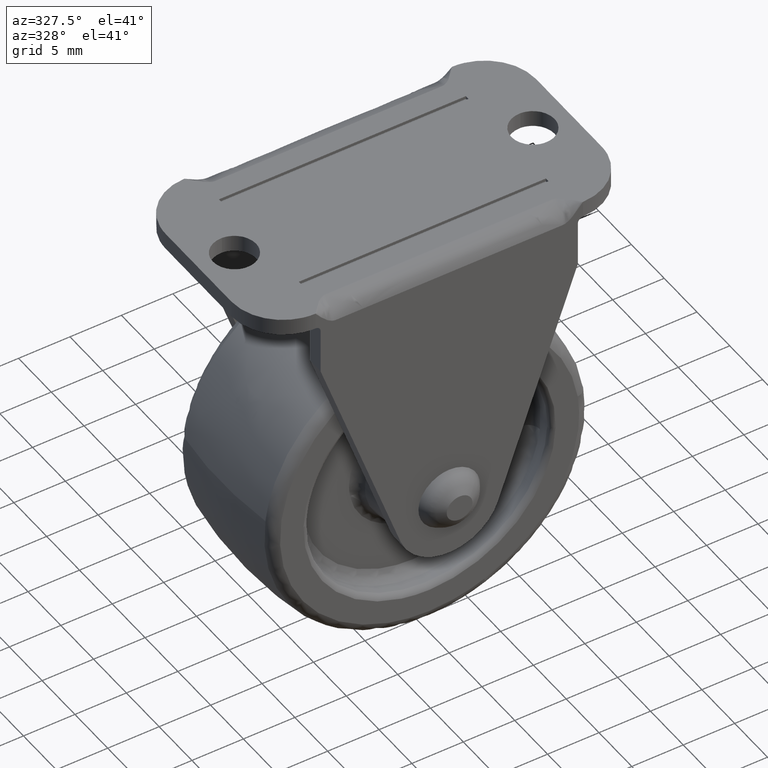
[diagram: clean part render]
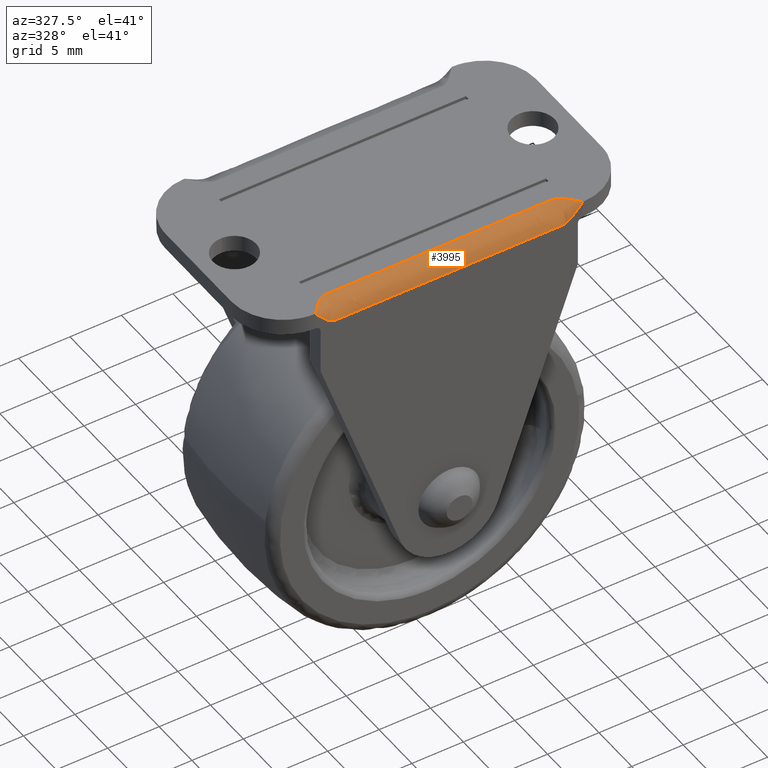
[diagram: same view with one face highlighted and labeled with its STEP entity id]
A machine part, auxiliary view. The second image highlights one B-rep face of the part: STEP entity #3995.
In plain terms, the highlighted face is a freeform B-spline surface patch.
Its self-contained STEP definition (entity closure, byte-faithful):
#3925=CARTESIAN_POINT('',(13.0,-10.0,26.0));
#3926=CARTESIAN_POINT('',(12.999999999999995,-10.000000000000085,26.0));
#3927=CARTESIAN_POINT('',(13.0,-10.0,26.0));
#3928=CARTESIAN_POINT('',(12.333332460668700,-10.0,25.199999999999999));
#3929=CARTESIAN_POINT('',(12.333332460668696,-10.000000000000085,26.0));
#3930=CARTESIAN_POINT('',(12.333332460668700,-9.199999999999999,26.0));
#3931=CARTESIAN_POINT('',(11.666664921337420,-10.0,24.399999999999999));
#3932=CARTESIAN_POINT('',(11.666664921337414,-10.000000000000085,26.0));
#3933=CARTESIAN_POINT('',(11.666664921337420,-8.400000000000000,26.0));
#3934=CARTESIAN_POINT('',(10.999997382006120,-10.0,24.399999999999999));
#3935=CARTESIAN_POINT('',(10.999997382006116,-10.000000000000085,26.0));
#3936=CARTESIAN_POINT('',(10.999997382006120,-8.400000000000000,26.0));
#3937=CARTESIAN_POINT('',(3.666664048672790,-10.0,24.399999999999999));
#3938=CARTESIAN_POINT('',(3.666664048672786,-10.000000000000085,26.0));
#3939=CARTESIAN_POINT('',(3.666664048672790,-8.400000000000000,26.0));
#3940=CARTESIAN_POINT('',(-3.666669284660545,-10.0,24.399999999999999));
#3941=CARTESIAN_POINT('',(-3.666669284660544,-10.000000000000085,26.0));
#3942=CARTESIAN_POINT('',(-3.666669284660545,-8.400000000000000,26.0));
#3943=CARTESIAN_POINT('',(-11.000002617993900,-10.0,24.399999999999999));
#3944=CARTESIAN_POINT('',(-11.000002617993875,-10.000000000000085,26.0));
#3945=CARTESIAN_POINT('',(-11.000002617993900,-8.400000000000000,26.0));
#3946=CARTESIAN_POINT('',(-11.666669284660539,-10.0,24.399999999999999));
#3947=CARTESIAN_POINT('',(-11.666669284660539,-10.000000000000085,26.0));
#3948=CARTESIAN_POINT('',(-11.666669284660539,-8.400000000000000,26.0));
#3949=CARTESIAN_POINT('',(-12.333335951327220,-10.0,25.199999999999999));
#3950=CARTESIAN_POINT('',(-12.333335951327204,-10.000000000000085,26.0));
#3951=CARTESIAN_POINT('',(-12.333335951327220,-9.199999999999999,26.0));
#3952=CARTESIAN_POINT('',(-13.000002617993880,-10.0,26.0));
#3953=CARTESIAN_POINT('',(-13.000002617993866,-10.000000000000085,26.0));
#3954=CARTESIAN_POINT('',(-13.000002617993880,-10.0,26.0));
#3962=(BOUNDED_SURFACE()B_SPLINE_SURFACE(2,3,((#3925,#3928,#3931,#3934,#3937,#3940,#3943,#3946,#3949,#3952),(#3926,#3929,#3932,#3935,#3938,#3941,#3944,#3947,#3950,#3953),(#3927,#3930,#3933,#3936,#3939,#3942,#3945,#3948,#3951,#3954)),.UNSPECIFIED.,.F.,.F.,.U.)B_SPLINE_SURFACE_WITH_KNOTS((3,3),(4,3,3,4),(0.0,1.0),(0.0,0.076923169869596,0.923076930822466,1.0),.UNSPECIFIED.)GEOMETRIC_REPRESENTATION_ITEM()RATIONAL_B_SPLINE_SURFACE(((1.0,1.0,1.0,1.0,1.0,1.0,1.0,1.0,1.0,1.0),(0.707106781186548,0.707106781186548,0.707106781186548,0.707106781186548,0.707106781186548,0.707106781186548,0.707106781186548,0.707106781186548,0.707106781186548,0.707106781186548),(1.0,1.0,1.0,1.0,1.0,1.0,1.0,1.0,1.0,1.0)))REPRESENTATION_ITEM('')SURFACE());
#3963=CARTESIAN_POINT('',(-13.000002617993880,-9.999999999999400,26.0));
#3964=VERTEX_POINT('',#3963);
#3965=CARTESIAN_POINT('',(13.0,-10.0,26.0));
#3966=VERTEX_POINT('',#3965);
#3967=CARTESIAN_POINT('',(-13.000002617993880,-9.999999999999400,26.0));
#3968=CARTESIAN_POINT('',(-12.333335951327220,-9.199999999999999,26.0));
#3969=CARTESIAN_POINT('',(-11.666669284660539,-8.400000000000000,26.0));
#3970=CARTESIAN_POINT('',(-11.000002617993900,-8.400000000000000,26.0));
#3971=CARTESIAN_POINT('',(-3.666669284660545,-8.400000000000000,26.0));
#3972=CARTESIAN_POINT('',(3.666664048672790,-8.400000000000000,26.0));
#3973=CARTESIAN_POINT('',(10.999997382006120,-8.400000000000000,26.0));
#3974=CARTESIAN_POINT('',(11.666664921337420,-8.400000000000000,26.0));
#3975=CARTESIAN_POINT('',(12.333332460668700,-9.199999999999999,26.0));
#3976=CARTESIAN_POINT('',(13.0,-10.0,26.0));
#3977=B_SPLINE_CURVE_WITH_KNOTS('',3,(#3967,#3968,#3969,#3970,#3971,#3972,#3973,#3974,#3975,#3976),.UNSPECIFIED.,.F.,.U.,(4,3,3,4),(0.0,0.076923069177534,0.923076830130404,1.0),.UNSPECIFIED.);
#3978=EDGE_CURVE('',#3964,#3966,#3977,.T.);
#3979=ORIENTED_EDGE('',*,*,#3978,.F.);
#3980=CARTESIAN_POINT('',(13.0,-10.0,26.0));
#3981=CARTESIAN_POINT('',(12.333332460668700,-10.0,25.199999999999999));
#3982=CARTESIAN_POINT('',(11.666664921337420,-10.0,24.399999999999999));
#3983=CARTESIAN_POINT('',(10.999997382006120,-10.0,24.399999999999999));
#3984=CARTESIAN_POINT('',(3.666664048672790,-10.0,24.399999999999999));
#3985=CARTESIAN_POINT('',(-3.666669284660545,-10.0,24.399999999999999));
#3986=CARTESIAN_POINT('',(-11.000002617993900,-10.0,24.399999999999999));
#3987=CARTESIAN_POINT('',(-11.666669284660539,-10.0,24.399999999999999));
#3988=CARTESIAN_POINT('',(-12.333335951327220,-10.0,25.199999999999999));
#3989=CARTESIAN_POINT('',(-13.000002617993880,-9.999999999999400,26.0));
#3990=B_SPLINE_CURVE_WITH_KNOTS('',3,(#3980,#3981,#3982,#3983,#3984,#3985,#3986,#3987,#3988,#3989),.UNSPECIFIED.,.F.,.U.,(4,3,3,4),(0.0,0.076923169869596,0.923076930822466,1.0),.UNSPECIFIED.);
#3991=EDGE_CURVE('',#3966,#3964,#3990,.T.);
#3992=ORIENTED_EDGE('',*,*,#3991,.F.);
#3993=EDGE_LOOP('',(#3979,#3992));
#3994=FACE_OUTER_BOUND('',#3993,.T.);
#3995=ADVANCED_FACE('',(#3994),#3962,.T.);